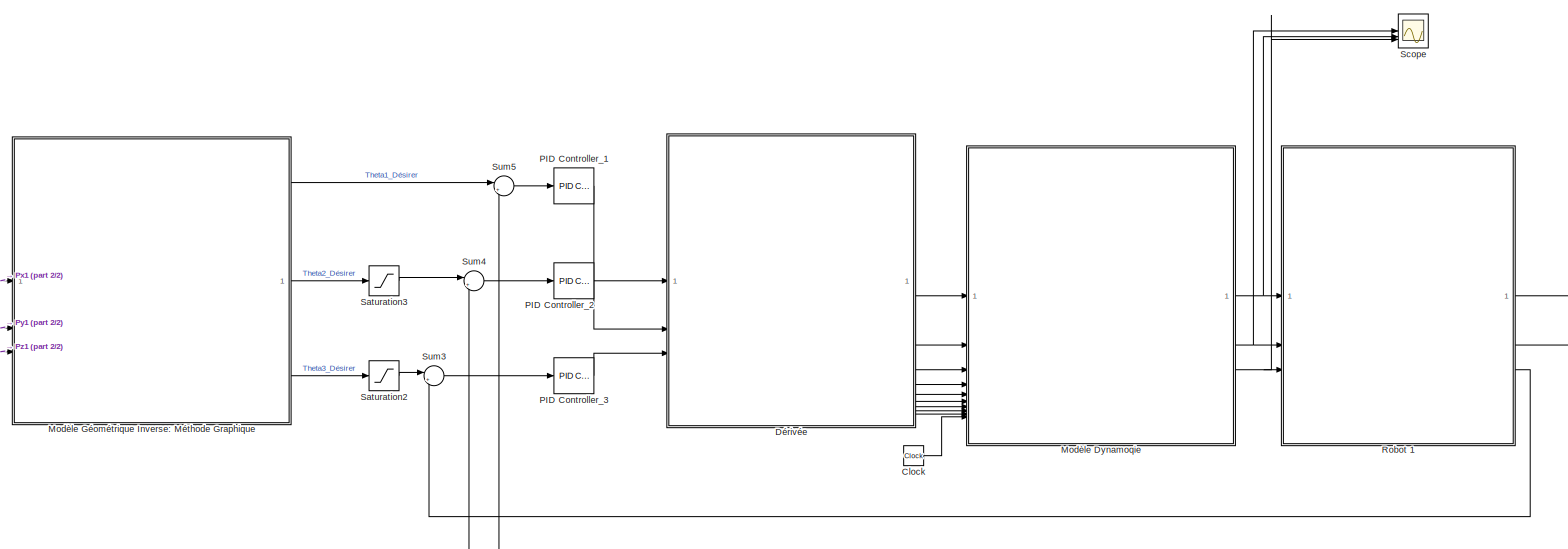
[diagram: root canvas - part 1/2, most of the canvas]
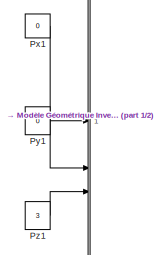
[diagram: root canvas - part 2/2, middle left region]
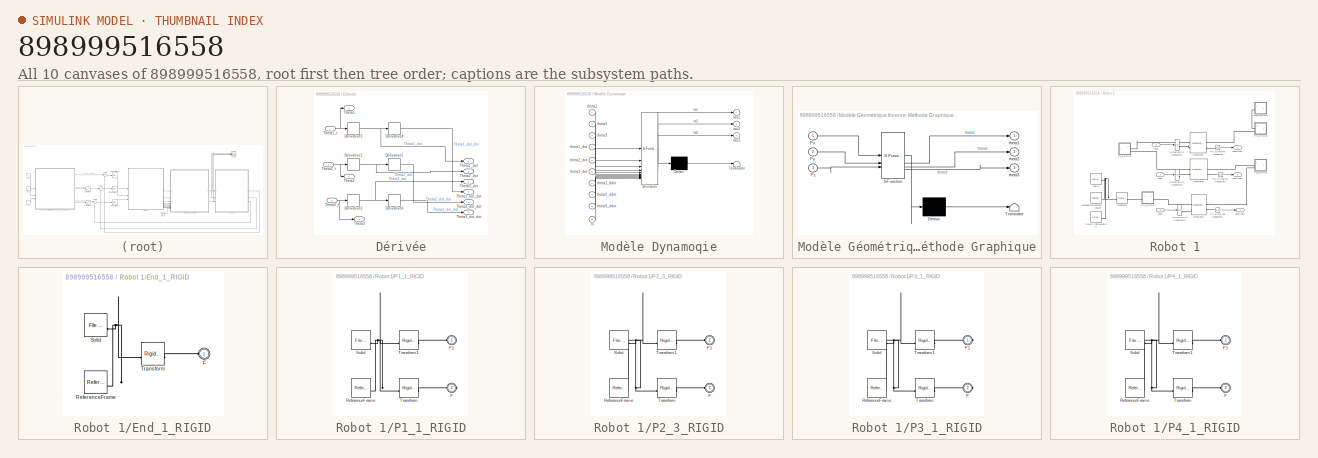
[diagram: thumbnail index - all 10 canvases of the model, root first then tree order]
MODEL slx_898999516558
KIND model
CONFIG AbsTol = auto
CONFIG EnableMultiTasking = off
CONFIG FixedStep = auto
CONFIG MaxStep = auto
CONFIG MinStep = auto
CONFIG RelTol = 1e-3
CONFIG SampleTimeConstraint = Unconstrained
CONFIG SolverName = VariableStepAuto
CONFIG StartTime = 0.0
CONFIG StopTime = 10.0
BLOCK [Clock] Clock
BLOCK [SubSystem] Dérivée
BLOCK [Derivative] Dérivée/Derivative1
BLOCK [Derivative] Dérivée/Derivative2
BLOCK [Derivative] Dérivée/Derivative3
BLOCK [Derivative] Dérivée/Derivative4
BLOCK [Derivative] Dérivée/Derivative5
BLOCK [Derivative] Dérivée/Derivative6
BLOCK [Outport] Dérivée/Theta1
BLOCK [Outport] Dérivée/Theta1_dot
  Port = 4
BLOCK [Outport] Dérivée/Theta1_dot_dot
  Port = 7
BLOCK [Inport] Dérivée/Theta1_t
BLOCK [Outport] Dérivée/Theta2
  Port = 2
BLOCK [Outport] Dérivée/Theta2_dot
  Port = 5
BLOCK [Outport] Dérivée/Theta2_dot_dot
  Port = 8
BLOCK [Inport] Dérivée/Theta2_t
  Port = 2
BLOCK [Outport] Dérivée/Theta3
  Port = 3
BLOCK [Outport] Dérivée/Theta3_dot
  Port = 6
BLOCK [Outport] Dérivée/Theta3_dot_dot
  Port = 9
BLOCK [Inport] Dérivée/Theta3_t
  Port = 3
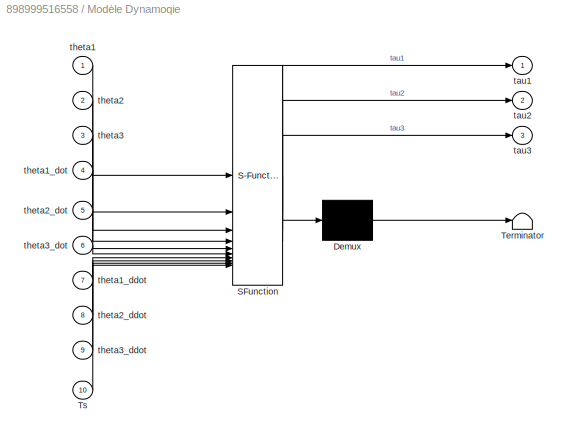
BLOCK [SubSystem] Modèle Dynamoqie
  ErrorFcn = Stateflow.Translate.translate
  PermitHierarchicalResolution = ExplicitOnly
  SFBlockType = MATLAB Function
  TreatAsAtomicUnit = on
BLOCK [Demux] Modèle Dynamoqie/ Demux 
  Outputs = 1
BLOCK [S-Function] Modèle Dynamoqie/ SFunction 
  EnableBusSupport = off
  FunctionName = sf_sfun
  PortCounts = [10 4]
  SFcnIsStateOwnerBlock = off
  SFunctionDeploymentMode = off
  Tag = Stateflow S-Function 3
BLOCK [Terminator] Modèle Dynamoqie/ Terminator 
BLOCK [Inport] Modèle Dynamoqie/Ts
  Port = 10
BLOCK [Outport] Modèle Dynamoqie/tau1
BLOCK [Outport] Modèle Dynamoqie/tau2
  Port = 2
BLOCK [Outport] Modèle Dynamoqie/tau3
  Port = 3
BLOCK [Inport] Modèle Dynamoqie/theta1
BLOCK [Inport] Modèle Dynamoqie/theta1_ddot
  Port = 7
BLOCK [Inport] Modèle Dynamoqie/theta1_dot
  Port = 4
BLOCK [Inport] Modèle Dynamoqie/theta2
  Port = 2
BLOCK [Inport] Modèle Dynamoqie/theta2_ddot
  Port = 8
BLOCK [Inport] Modèle Dynamoqie/theta2_dot
  Port = 5
BLOCK [Inport] Modèle Dynamoqie/theta3
  Port = 3
BLOCK [Inport] Modèle Dynamoqie/theta3_ddot
  Port = 9
BLOCK [Inport] Modèle Dynamoqie/theta3_dot
  Port = 6
BLOCK [SubSystem] Modèle Géométrique Inverse: Méthode Graphique
  ErrorFcn = Stateflow.Translate.translate
  PermitHierarchicalResolution = ExplicitOnly
  SFBlockType = MATLAB Function
  TreatAsAtomicUnit = on
BLOCK [Demux] Modèle Géométrique Inverse: Méthode Graphique/ Demux 
  Outputs = 1
BLOCK [S-Function] Modèle Géométrique Inverse: Méthode Graphique/ SFunction 
  EnableBusSupport = off
  FunctionName = sf_sfun
  PortCounts = [3 4]
  SFcnIsStateOwnerBlock = off
  SFunctionDeploymentMode = off
  Tag = Stateflow S-Function 4
BLOCK [Terminator] Modèle Géométrique Inverse: Méthode Graphique/ Terminator 
BLOCK [Inport] Modèle Géométrique Inverse: Méthode Graphique/Px
BLOCK [Inport] Modèle Géométrique Inverse: Méthode Graphique/Py
  Port = 2
BLOCK [Inport] Modèle Géométrique Inverse: Méthode Graphique/Pz
  Port = 3
BLOCK [Outport] Modèle Géométrique Inverse: Méthode Graphique/theta1
BLOCK [Outport] Modèle Géométrique Inverse: Méthode Graphique/theta2
  Port = 2
BLOCK [Outport] Modèle Géométrique Inverse: Méthode Graphique/theta3
  Port = 3
BLOCK [Reference] PID Controller_1  REF=slpidlib/PID Controller
  LibrarySourceBlock = simulink/Continuous/PID Controller
  SourceBlock = slpidlib/PID Controller
  SourceType = PID 1dof
BLOCK [Reference] PID Controller_2  REF=slpidlib/PID Controller
  LibrarySourceBlock = simulink/Continuous/PID Controller
  SourceBlock = slpidlib/PID Controller
  SourceType = PID 1dof
BLOCK [Reference] PID Controller_3  REF=slpidlib/PID Controller
  LibrarySourceBlock = simulink/Continuous/PID Controller
  SourceBlock = slpidlib/PID Controller
  SourceType = PID 1dof
BLOCK [Constant] Px1
  Value = 0
BLOCK [Constant] Py1
  Value = 0
BLOCK [Constant] Pz1
  Value = 3
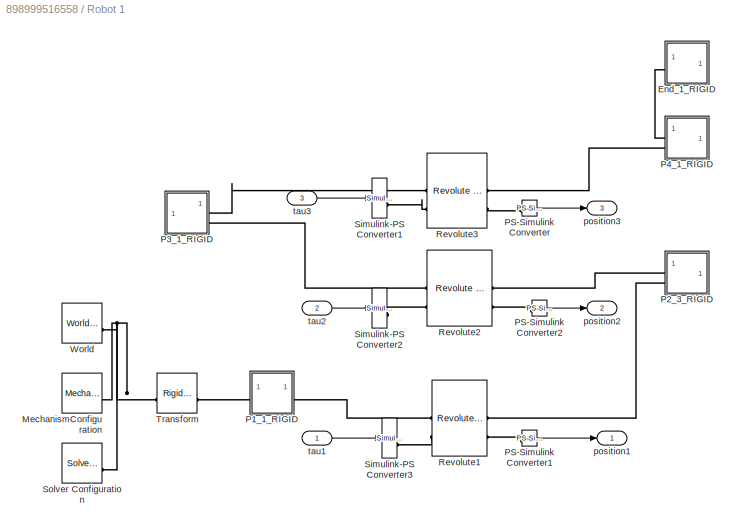
BLOCK [SubSystem] Robot 1
BLOCK [SubSystem] Robot 1/End_1_RIGID
BLOCK [PMIOPort] Robot 1/End_1_RIGID/F
  Side = Left
BLOCK [Reference] Robot 1/End_1_RIGID/ReferenceFrame  REF=sm_lib/Frames and
Transforms/Reference
Frame
  SourceBlock = sm_lib/Frames and\nTransforms/Reference\nFrame
  SourceType = Reference\nFrame
BLOCK [Reference] Robot 1/End_1_RIGID/Solid  REF=sm_lib/Body Elements/File Solid
  SourceBlock = sm_lib/Body Elements/File Solid
  SourceType = File Solid
BLOCK [Reference] Robot 1/End_1_RIGID/Transform  REF=sm_lib/Frames and
Transforms/Rigid
Transform
  SourceBlock = sm_lib/Frames and\nTransforms/Rigid\nTransform
  SourceType = Rigid\nTransform
BLOCK [Reference] Robot 1/MechanismConfiguration  REF=sm_lib/Utilities/Mechanism
Configuration
  SourceBlock = sm_lib/Utilities/Mechanism\nConfiguration
  SourceType = Mechanism\nConfiguration
BLOCK [SubSystem] Robot 1/P1_1_RIGID
BLOCK [PMIOPort] Robot 1/P1_1_RIGID/F
  Port = 2
  Side = Right
BLOCK [PMIOPort] Robot 1/P1_1_RIGID/F1
  Side = Left
BLOCK [Reference] Robot 1/P1_1_RIGID/ReferenceFrame  REF=sm_lib/Frames and
Transforms/Reference
Frame
  SourceBlock = sm_lib/Frames and\nTransforms/Reference\nFrame
  SourceType = Reference\nFrame
BLOCK [Reference] Robot 1/P1_1_RIGID/Solid  REF=sm_lib/Body Elements/File Solid
  SourceBlock = sm_lib/Body Elements/File Solid
  SourceType = File Solid
BLOCK [Reference] Robot 1/P1_1_RIGID/Transform  REF=sm_lib/Frames and
Transforms/Rigid
Transform
  SourceBlock = sm_lib/Frames and\nTransforms/Rigid\nTransform
  SourceType = Rigid\nTransform
BLOCK [Reference] Robot 1/P1_1_RIGID/Transform1  REF=sm_lib/Frames and
Transforms/Rigid
Transform
  SourceBlock = sm_lib/Frames and\nTransforms/Rigid\nTransform
  SourceType = Rigid\nTransform
BLOCK [SubSystem] Robot 1/P2_3_RIGID
BLOCK [PMIOPort] Robot 1/P2_3_RIGID/F
  Port = 2
  Side = Left
BLOCK [PMIOPort] Robot 1/P2_3_RIGID/F1
  Side = Left
BLOCK [Reference] Robot 1/P2_3_RIGID/ReferenceFrame  REF=sm_lib/Frames and
Transforms/Reference
Frame
  SourceBlock = sm_lib/Frames and\nTransforms/Reference\nFrame
  SourceType = Reference\nFrame
BLOCK [Reference] Robot 1/P2_3_RIGID/Solid  REF=sm_lib/Body Elements/File Solid
  SourceBlock = sm_lib/Body Elements/File Solid
  SourceType = File Solid
BLOCK [Reference] Robot 1/P2_3_RIGID/Transform  REF=sm_lib/Frames and
Transforms/Rigid
Transform
  SourceBlock = sm_lib/Frames and\nTransforms/Rigid\nTransform
  SourceType = Rigid\nTransform
BLOCK [Reference] Robot 1/P2_3_RIGID/Transform1  REF=sm_lib/Frames and
Transforms/Rigid
Transform
  SourceBlock = sm_lib/Frames and\nTransforms/Rigid\nTransform
  SourceType = Rigid\nTransform
BLOCK [SubSystem] Robot 1/P3_1_RIGID
BLOCK [PMIOPort] Robot 1/P3_1_RIGID/F
  Port = 2
  Side = Right
BLOCK [PMIOPort] Robot 1/P3_1_RIGID/F1
  Side = Right
BLOCK [Reference] Robot 1/P3_1_RIGID/ReferenceFrame  REF=sm_lib/Frames and
Transforms/Reference
Frame
  SourceBlock = sm_lib/Frames and\nTransforms/Reference\nFrame
  SourceType = Reference\nFrame
BLOCK [Reference] Robot 1/P3_1_RIGID/Solid  REF=sm_lib/Body Elements/File Solid
  SourceBlock = sm_lib/Body Elements/File Solid
  SourceType = File Solid
BLOCK [Reference] Robot 1/P3_1_RIGID/Transform  REF=sm_lib/Frames and
Transforms/Rigid
Transform
  SourceBlock = sm_lib/Frames and\nTransforms/Rigid\nTransform
  SourceType = Rigid\nTransform
BLOCK [Reference] Robot 1/P3_1_RIGID/Transform1  REF=sm_lib/Frames and
Transforms/Rigid
Transform
  SourceBlock = sm_lib/Frames and\nTransforms/Rigid\nTransform
  SourceType = Rigid\nTransform
BLOCK [SubSystem] Robot 1/P4_1_RIGID
BLOCK [PMIOPort] Robot 1/P4_1_RIGID/F
  Port = 2
  Side = Left
BLOCK [PMIOPort] Robot 1/P4_1_RIGID/F1
  Side = Left
BLOCK [Reference] Robot 1/P4_1_RIGID/ReferenceFrame  REF=sm_lib/Frames and
Transforms/Reference
Frame
  SourceBlock = sm_lib/Frames and\nTransforms/Reference\nFrame
  SourceType = Reference\nFrame
BLOCK [Reference] Robot 1/P4_1_RIGID/Solid  REF=sm_lib/Body Elements/File Solid
  SourceBlock = sm_lib/Body Elements/File Solid
  SourceType = File Solid
BLOCK [Reference] Robot 1/P4_1_RIGID/Transform  REF=sm_lib/Frames and
Transforms/Rigid
Transform
  SourceBlock = sm_lib/Frames and\nTransforms/Rigid\nTransform
  SourceType = Rigid\nTransform
BLOCK [Reference] Robot 1/P4_1_RIGID/Transform1  REF=sm_lib/Frames and
Transforms/Rigid
Transform
  SourceBlock = sm_lib/Frames and\nTransforms/Rigid\nTransform
  SourceType = Rigid\nTransform
BLOCK [Reference] Robot 1/PS-Simulink Converter  REF=nesl_utility/PS-Simulink
Converter
  SourceBlock = nesl_utility/PS-Simulink\nConverter
  SourceType = PS-Simulink\nConverter
BLOCK [Reference] Robot 1/PS-Simulink Converter1  REF=nesl_utility/PS-Simulink
Converter
  SourceBlock = nesl_utility/PS-Simulink\nConverter
  SourceType = PS-Simulink\nConverter
BLOCK [Reference] Robot 1/PS-Simulink Converter2  REF=nesl_utility/PS-Simulink
Converter
  SourceBlock = nesl_utility/PS-Simulink\nConverter
  SourceType = PS-Simulink\nConverter
BLOCK [Reference] Robot 1/Revolute1  REF=sm_lib/Joints/Revolute Joint
  SourceBlock = sm_lib/Joints/Revolute Joint
  SourceType = Revolute Joint
BLOCK [Reference] Robot 1/Revolute2  REF=sm_lib/Joints/Revolute Joint
  SourceBlock = sm_lib/Joints/Revolute Joint
  SourceType = Revolute Joint
BLOCK [Reference] Robot 1/Revolute3  REF=sm_lib/Joints/Revolute Joint
  SourceBlock = sm_lib/Joints/Revolute Joint
  SourceType = Revolute Joint
BLOCK [Reference] Robot 1/Simulink-PS Converter1  REF=nesl_utility/Simulink-PS
Converter
  SourceBlock = nesl_utility/Simulink-PS\nConverter
  SourceType = Simulink-PS\nConverter
BLOCK [Reference] Robot 1/Simulink-PS Converter2  REF=nesl_utility/Simulink-PS
Converter
  SourceBlock = nesl_utility/Simulink-PS\nConverter
  SourceType = Simulink-PS\nConverter
BLOCK [Reference] Robot 1/Simulink-PS Converter3  REF=nesl_utility/Simulink-PS
Converter
  SourceBlock = nesl_utility/Simulink-PS\nConverter
  SourceType = Simulink-PS\nConverter
BLOCK [Reference] Robot 1/Solver Configuration  REF=nesl_utility/Solver
Configuration
  SourceBlock = nesl_utility/Solver\nConfiguration
  SourceType = Solver\nConfiguration
BLOCK [Reference] Robot 1/Transform  REF=sm_lib/Frames and
Transforms/Rigid
Transform
  SourceBlock = sm_lib/Frames and\nTransforms/Rigid\nTransform
  SourceType = Rigid\nTransform
BLOCK [Reference] Robot 1/World  REF=sm_lib/Frames and
Transforms/World Frame
  SourceBlock = sm_lib/Frames and\nTransforms/World Frame
  SourceType = World Frame
BLOCK [Outport] Robot 1/position1
BLOCK [Outport] Robot 1/position2
  Port = 2
BLOCK [Outport] Robot 1/position3
  Port = 3
BLOCK [Inport] Robot 1/tau1
BLOCK [Inport] Robot 1/tau2
  Port = 2
BLOCK [Inport] Robot 1/tau3
  Port = 3
BLOCK [Saturate] Saturation2
  LowerLimit = (-pi)/4
  UpperLimit = pi/4
BLOCK [Saturate] Saturation3
  LowerLimit = (-pi)/2
  UpperLimit = pi/2
BLOCK [Scope] Scope
  ActiveDisplayYMaximum = 0.25866013071895422
  ActiveDisplayYMinimum = -0.26633986928104575
  Floating = off
  GraphicalSettings = {"Style":{"BackgroundColor":[0.12941176470588237,0.12941176470588237,0.12941176470588237],"AxesColor":[0.07058823529411765,0.07058823529411765,0.07058823529411765],"LabelsColor":[0.8509803921568627,0.8509803921568627,0.8509803921568627],"PreserveColors":false,"Visible":[true,true,true],"LineStyle":["-","-","-"],"LineWidth":[1.5,1.5,1.5],"BarWidth":[0.9,0.9,0.9],"LineColor":["auto","auto","auto"],"...<+2286ch>
  MultipleDisplayCache = [{"MaxYLimMag":0.25,"MaxYLimReal":0.25866013071895422,"MinYLimMag":0,"MinYLimReal":-0.26633986928104575,"PlotAsMagnitudePhase":false,"ShowGrid":true,"ShowLegend":false,"Title":"%<SignalLabel>","YLabel":""}]
  NumInputPorts = 3
  ScopeFrameLocation = window
  WasSavedAsWebScope = on
  WindowPosition = [1.000000,49.000000,1920.000000,1009.000000,]
BLOCK [Sum] Sum3
  Inputs = |+-
BLOCK [Sum] Sum4
  Inputs = |+-
BLOCK [Sum] Sum5
  Inputs = |+-
LINE Clock:1 -> Modèle Dynamoqie:10
NET Dérivée/Derivative1:1 -> Dérivée/Derivative5:1, Dérivée/Theta2_dot:1
NET Dérivée/Derivative2:1 -> Dérivée/Derivative6:1, Dérivée/Theta3_dot:1
NET Dérivée/Derivative3:1 -> Dérivée/Derivative4:1, Dérivée/Theta1_dot:1
LINE Dérivée/Derivative4:1 -> Dérivée/Theta1_dot_dot:1
LINE Dérivée/Derivative5:1 -> Dérivée/Theta2_dot_dot:1
LINE Dérivée/Derivative6:1 -> Dérivée/Theta3_dot_dot:1
NET Dérivée/Theta1_t:1 -> Dérivée/Derivative3:1, Dérivée/Theta1:1
NET Dérivée/Theta2_t:1 -> Dérivée/Derivative1:1, Dérivée/Theta2:1
NET Dérivée/Theta3_t:1 -> Dérivée/Derivative2:1, Dérivée/Theta3:1
LINE Dérivée:1 -> Modèle Dynamoqie:1
LINE Dérivée:2 -> Modèle Dynamoqie:2
LINE Dérivée:3 -> Modèle Dynamoqie:3
LINE Dérivée:4 -> Modèle Dynamoqie:4
LINE Dérivée:5 -> Modèle Dynamoqie:5
LINE Dérivée:6 -> Modèle Dynamoqie:6
LINE Dérivée:7 -> Modèle Dynamoqie:7
LINE Dérivée:8 -> Modèle Dynamoqie:8
LINE Dérivée:9 -> Modèle Dynamoqie:9
NET Modèle Dynamoqie:1 -> Robot 1:1, Scope:2
NET Modèle Dynamoqie:2 -> Robot 1:2, Scope:1
NET Modèle Dynamoqie:3 -> Robot 1:3, Scope:3
LINE Modèle Géométrique Inverse: Méthode Graphique:1 -> Sum5:1
LINE Modèle Géométrique Inverse: Méthode Graphique:2 -> Saturation3:1
LINE Modèle Géométrique Inverse: Méthode Graphique:3 -> Saturation2:1
LINE PID Controller_1:1 -> Dérivée:1
LINE PID Controller_2:1 -> Dérivée:2
LINE PID Controller_3:1 -> Dérivée:3
LINE Px1:1 -> Modèle Géométrique Inverse: Méthode Graphique:1
LINE Py1:1 -> Modèle Géométrique Inverse: Méthode Graphique:2
LINE Pz1:1 -> Modèle Géométrique Inverse: Méthode Graphique:3
LINE Robot 1/PS-Simulink Converter1:1 -> Robot 1/position1:1
LINE Robot 1/PS-Simulink Converter2:1 -> Robot 1/position2:1
LINE Robot 1/PS-Simulink Converter:1 -> Robot 1/position3:1
LINE Robot 1/tau1:1 -> Robot 1/Simulink-PS Converter3:1
LINE Robot 1/tau2:1 -> Robot 1/Simulink-PS Converter2:1
LINE Robot 1/tau3:1 -> Robot 1/Simulink-PS Converter1:1
LINE Robot 1:1 -> Sum5:2
LINE Robot 1:2 -> Sum4:2
LINE Robot 1:3 -> Sum3:2
LINE Saturation2:1 -> Sum3:1
LINE Saturation3:1 -> Sum4:1
LINE Sum3:1 -> PID Controller_3:1
LINE Sum4:1 -> PID Controller_2:1
LINE Sum5:1 -> PID Controller_1:1
PLINE Robot 1/End_1_RIGID/F:RConn1 -- Robot 1/End_1_RIGID/Transform:RConn1
PNET net1: Robot 1/End_1_RIGID/ReferenceFrame:RConn1 -- Robot 1/End_1_RIGID/Solid:RConn1 -- Robot 1/End_1_RIGID/Transform:LConn1
PLINE Robot 1/End_1_RIGID:LConn1 -- Robot 1/P4_1_RIGID:LConn1
PNET net2: Robot 1/MechanismConfiguration:RConn1 -- Robot 1/Solver Configuration:RConn1 -- Robot 1/Transform:LConn1 -- Robot 1/World:RConn1
PLINE Robot 1/P1_1_RIGID/F1:RConn1 -- Robot 1/P1_1_RIGID/Transform1:RConn1
PLINE Robot 1/P1_1_RIGID/F:RConn1 -- Robot 1/P1_1_RIGID/Transform:RConn1
PNET net3: Robot 1/P1_1_RIGID/ReferenceFrame:RConn1 -- Robot 1/P1_1_RIGID/Solid:RConn1 -- Robot 1/P1_1_RIGID/Transform1:LConn1 -- Robot 1/P1_1_RIGID/Transform:LConn1
PLINE Robot 1/P1_1_RIGID:LConn1 -- Robot 1/Transform:RConn1
PLINE Robot 1/P1_1_RIGID:RConn1 -- Robot 1/Revolute1:LConn1
PLINE Robot 1/P2_3_RIGID/F1:RConn1 -- Robot 1/P2_3_RIGID/Transform1:RConn1
PLINE Robot 1/P2_3_RIGID/F:RConn1 -- Robot 1/P2_3_RIGID/Transform:RConn1
PNET net4: Robot 1/P2_3_RIGID/ReferenceFrame:RConn1 -- Robot 1/P2_3_RIGID/Solid:RConn1 -- Robot 1/P2_3_RIGID/Transform1:LConn1 -- Robot 1/P2_3_RIGID/Transform:LConn1
PLINE Robot 1/P2_3_RIGID:LConn1 -- Robot 1/Revolute2:RConn1
PLINE Robot 1/P2_3_RIGID:LConn2 -- Robot 1/Revolute1:RConn1
PLINE Robot 1/P3_1_RIGID/F1:RConn1 -- Robot 1/P3_1_RIGID/Transform1:RConn1
PLINE Robot 1/P3_1_RIGID/F:RConn1 -- Robot 1/P3_1_RIGID/Transform:RConn1
PNET net5: Robot 1/P3_1_RIGID/ReferenceFrame:RConn1 -- Robot 1/P3_1_RIGID/Solid:RConn1 -- Robot 1/P3_1_RIGID/Transform1:LConn1 -- Robot 1/P3_1_RIGID/Transform:LConn1
PLINE Robot 1/P3_1_RIGID:RConn1 -- Robot 1/Revolute3:LConn1
PLINE Robot 1/P3_1_RIGID:RConn2 -- Robot 1/Revolute2:LConn1
PLINE Robot 1/P4_1_RIGID/F1:RConn1 -- Robot 1/P4_1_RIGID/Transform1:RConn1
PLINE Robot 1/P4_1_RIGID/F:RConn1 -- Robot 1/P4_1_RIGID/Transform:RConn1
PNET net6: Robot 1/P4_1_RIGID/ReferenceFrame:RConn1 -- Robot 1/P4_1_RIGID/Solid:RConn1 -- Robot 1/P4_1_RIGID/Transform1:LConn1 -- Robot 1/P4_1_RIGID/Transform:LConn1
PLINE Robot 1/P4_1_RIGID:LConn2 -- Robot 1/Revolute3:RConn1
PLINE Robot 1/PS-Simulink Converter1:LConn1 -- Robot 1/Revolute1:RConn2
PLINE Robot 1/PS-Simulink Converter2:LConn1 -- Robot 1/Revolute2:RConn2
PLINE Robot 1/PS-Simulink Converter:LConn1 -- Robot 1/Revolute3:RConn2
PLINE Robot 1/Revolute1:LConn2 -- Robot 1/Simulink-PS Converter3:RConn1
PLINE Robot 1/Revolute2:LConn2 -- Robot 1/Simulink-PS Converter2:RConn1
PLINE Robot 1/Revolute3:LConn2 -- Robot 1/Simulink-PS Converter1:RConn1
note: NET lines group one-source signal fan-out (src -> all destinations, sorted); 1:1 wires keep LINE; PNET lines group multi-terminal physical nets as a canonical sorted terminal list (undirected conserving connections); 2-terminal nets keep the pairwise PLINE form
CHART Modèle Dynamoqie states=1 transitions=1
  STATE_LABEL 'eML_blk_kernel()'
  STATE_LABEL 'SCRIPT:\nfunction [tau1,tau2,tau3] = Modele_Dynamique(theta1,theta2,theta3, ...\n                                             theta1_dot,theta2_dot,theta3_dot, ...\n                                             theta1_ddot,theta2_ddot,theta3_ddot, Ts)\n% Sorties lisses (pas "carré")\n% theta(rad), theta_dot(rad/s), theta_ddot(rad/s^2)\n% Ts: temps d\'échantillonnage (ex: 1e-3). Mets un Constant Ts dans Si...<+3608ch>'
CHART Modèle Géométrique Inverse: Méthode Graphique states=1 transitions=1
  STATE_LABEL 'eML_blk_kernel()'
  STATE_LABEL 'SCRIPT:\nfunction [theta1, theta2, theta3] = IK_Geometrique(Px, Py, Pz)\n%#codegen\n\n% ---- Constantes robot (mets tes vraies valeurs) ----\nd1 = 0.007906;\nL2 = 0.065765;\nL3 = 0.074987;\n\n% ---- Calculs intermédiaires ----\nr = sqrt(Px^2 + Py^2 + (Pz - d1)^2);\n\n% Sécurité numérique (evite acos/asin hors [-1,1])\nclamp = @(x) max(-1, min(1, x));\n\n% ---- Thetas (radians) ----\ntheta1 = atan2(Py, Px);\n\ntheta...<+210ch>'
CHART  states=0 transitions=0
CHART  states=0 transitions=0
